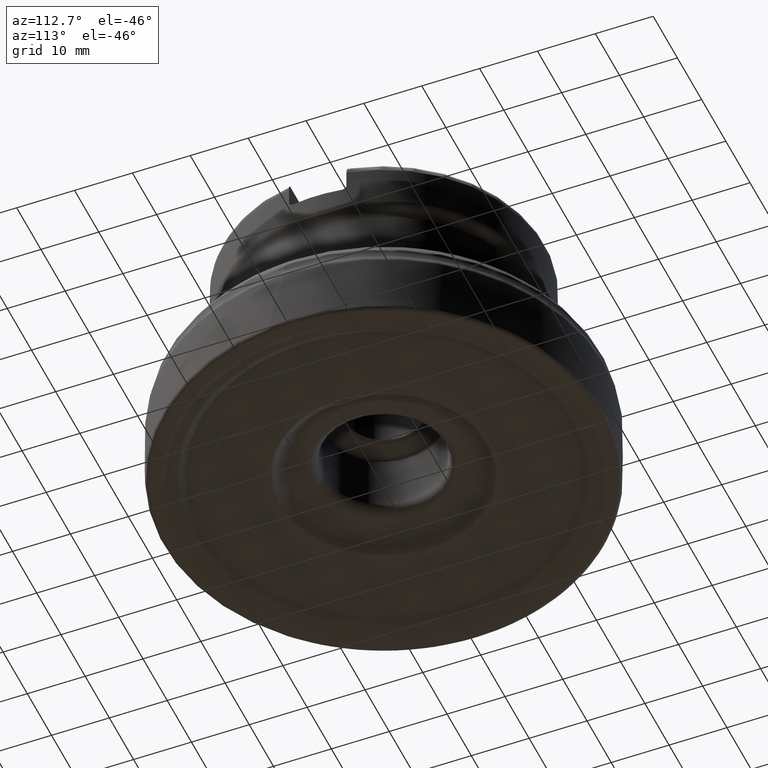
[diagram: clean part render]
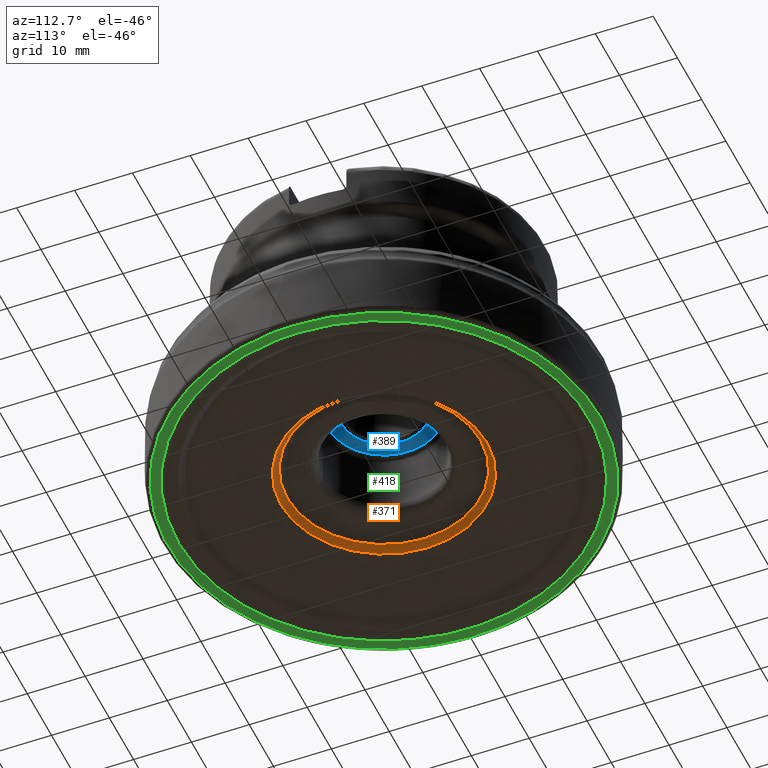
[diagram: same view with three faces highlighted in distinct colors, each labeled with its STEP entity id]
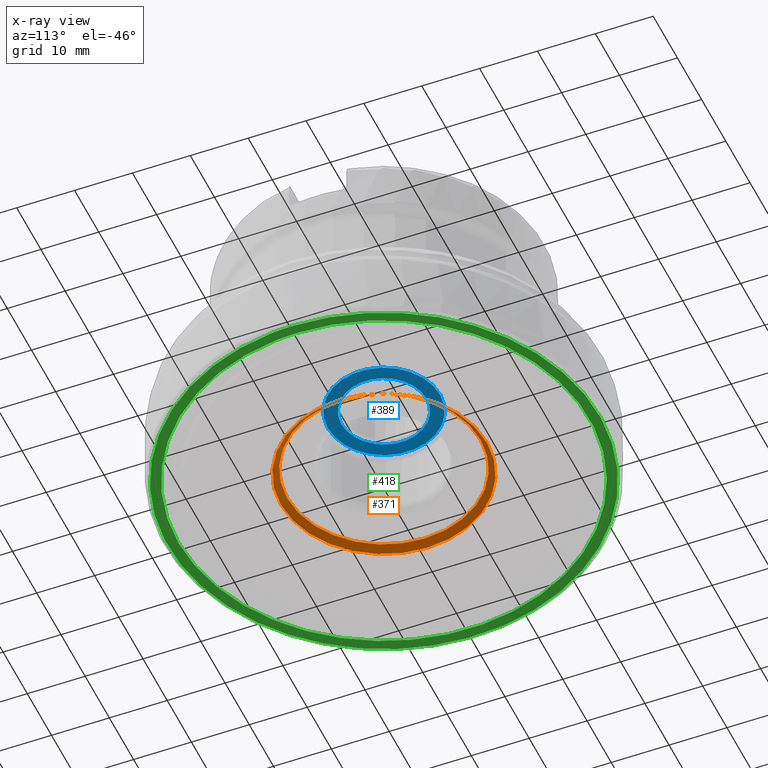
[diagram: x-ray of the same camera — body ghosted, the three highlighted faces saturated]
A machine part, auxiliary view with three faces highlighted in distinct colors.
The next image is the same camera in x-ray (body ghosted, the three faces saturated) — at least one of them is partly hidden behind the body in this view.
Their STEP definitions:

[orange] entity #371 — the highlighted conical surface has half-angle 45 deg.
#160=CONICAL_SURFACE('',#1234,16.1392716175706,45.);
#265=FACE_BOUND('',#495,.T.);
#266=FACE_BOUND('',#496,.T.);
#371=ADVANCED_FACE('',(#265,#266),#160,.F.);
#495=EDGE_LOOP('',(#718));
#496=EDGE_LOOP('',(#719));
#630=CIRCLE('',#1232,17.8049570425199);
#631=CIRCLE('',#1233,16.7250580551975);
#718=ORIENTED_EDGE('',*,*,#1052,.T.);
#719=ORIENTED_EDGE('',*,*,#1053,.T.);
#950=VERTEX_POINT('',#2090);
#951=VERTEX_POINT('',#2092);
#1052=EDGE_CURVE('',#950,#950,#630,.T.);
#1053=EDGE_CURVE('',#951,#951,#631,.T.);
#1232=AXIS2_PLACEMENT_3D('',#2089,#1397,#1398);
#1233=AXIS2_PLACEMENT_3D('',#2091,#1399,#1400);
#1234=AXIS2_PLACEMENT_3D('',#2093,#1401,#1402);
#1397=DIRECTION('',(0.,-1.17145536458252E-15,-1.));
#1398=DIRECTION('',(0.,-1.,1.16915090904233E-15));
#1399=DIRECTION('',(0.,1.17145536458252E-15,1.));
#1400=DIRECTION('',(0.,1.,-1.16685030571086E-15));
#1401=DIRECTION('',(0.,-1.17145536458252E-15,-1.));
#1402=DIRECTION('',(0.,1.,-1.23385782567619E-15));
#2089=CARTESIAN_POINT('',(0.,1.91452657635862E-15,1.63431457505076));
#2090=CARTESIAN_POINT('',(0.,-17.8049570425199,1.63431457505078));
#2091=CARTESIAN_POINT('',(0.,3.17958003826461E-15,2.7142135623731));
#2092=CARTESIAN_POINT('',(0.,16.7250580551975,2.71421356237308));
#2093=CARTESIAN_POINT('',(0.,3.86580270312233E-15,3.3));

[blue] entity #389 — the highlighted planar face has unit normal (0, -0, -1).
#178=PLANE('',#1267);
#277=FACE_BOUND('',#519,.T.);
#278=FACE_BOUND('',#520,.T.);
#389=ADVANCED_FACE('',(#277,#278),#178,.T.);
#519=EDGE_LOOP('',(#801));
#520=EDGE_LOOP('',(#802));
#645=CIRCLE('',#1265,9.7);
#646=CIRCLE('',#1266,7.35);
#801=ORIENTED_EDGE('',*,*,#1095,.T.);
#802=ORIENTED_EDGE('',*,*,#1096,.T.);
#979=VERTEX_POINT('',#2276);
#980=VERTEX_POINT('',#2278);
#1095=EDGE_CURVE('',#979,#979,#645,.T.);
#1096=EDGE_CURVE('',#980,#980,#646,.T.);
#1265=AXIS2_PLACEMENT_3D('',#2275,#1479,#1480);
#1266=AXIS2_PLACEMENT_3D('',#2277,#1481,#1482);
#1267=AXIS2_PLACEMENT_3D('',#2279,#1483,#1484);
#1479=DIRECTION('',(0.,-1.17145536458252E-15,-1.));
#1480=DIRECTION('',(0.,1.,-1.07302483050112E-15));
#1481=DIRECTION('',(0.,1.17145536458252E-15,1.));
#1482=DIRECTION('',(0.,1.,-9.44067197810507E-16));
#1483=DIRECTION('',(0.,-1.17145536458252E-15,-1.));
#1484=DIRECTION('',(0.,1.,-1.17267306976032E-15));
#2275=CARTESIAN_POINT('',(0.,1.86847130650913E-14,15.95));
#2276=CARTESIAN_POINT('',(0.,9.70000000000002,15.95));
#2277=CARTESIAN_POINT('',(0.,1.86847130650913E-14,15.95));
#2278=CARTESIAN_POINT('',(0.,7.35000000000002,15.95));
#2279=CARTESIAN_POINT('',(10.5,1.86847130650913E-14,15.95));

[green] entity #418 — the highlighted face is a SurfaceOfRevolution surface.
#115=SURFACE_OF_REVOLUTION('',#219,#136);
#136=AXIS1_PLACEMENT('',#2369,#1561);
#219=LINE('',#2368,#246);
#246=VECTOR('',#1560,1.79261885978442);
#323=FACE_BOUND('',#571,.T.);
#324=FACE_BOUND('',#572,.T.);
#418=ADVANCED_FACE('',(#323,#324),#115,.F.);
#571=EDGE_LOOP('',(#875));
#572=EDGE_LOOP('',(#876));
#656=CIRCLE('',#1302,35.5356270792213);
#657=CIRCLE('',#1303,37.3174051960703);
#875=ORIENTED_EDGE('',*,*,#1111,.T.);
#876=ORIENTED_EDGE('',*,*,#1112,.F.);
#991=VERTEX_POINT('',#2359);
#992=VERTEX_POINT('',#2367);
#1111=EDGE_CURVE('',#991,#991,#656,.T.);
#1112=EDGE_CURVE('',#992,#992,#657,.T.);
#1302=AXIS2_PLACEMENT_3D('',#2358,#1555,#1556);
#1303=AXIS2_PLACEMENT_3D('',#2366,#1558,#1559);
#1555=DIRECTION('',(0.,0.,1.));
#1556=DIRECTION('',(1.,0.,0.));
#1558=DIRECTION('',(0.,0.,1.));
#1559=DIRECTION('',(1.,0.,0.));
#1560=DIRECTION('',(-0.999663755434632,0.00300271381759437,0.0257557717814452));
#1561=DIRECTION('',(0.,0.,1.));
#2358=CARTESIAN_POINT('',(0.,0.,0.0461702824150781));
#2359=CARTESIAN_POINT('',(35.5356270792213,0.,0.0461702824150781));
#2366=CARTESIAN_POINT('',(0.,0.,1.30933448626433E-8));
#2367=CARTESIAN_POINT('',(37.3174051960703,0.,1.30933448626433E-8));
#2368=CARTESIAN_POINT('',(37.1024086875825,-4.00000001841202,1.30933448626433E-8));
#2369=CARTESIAN_POINT('',(0.,0.,0.));